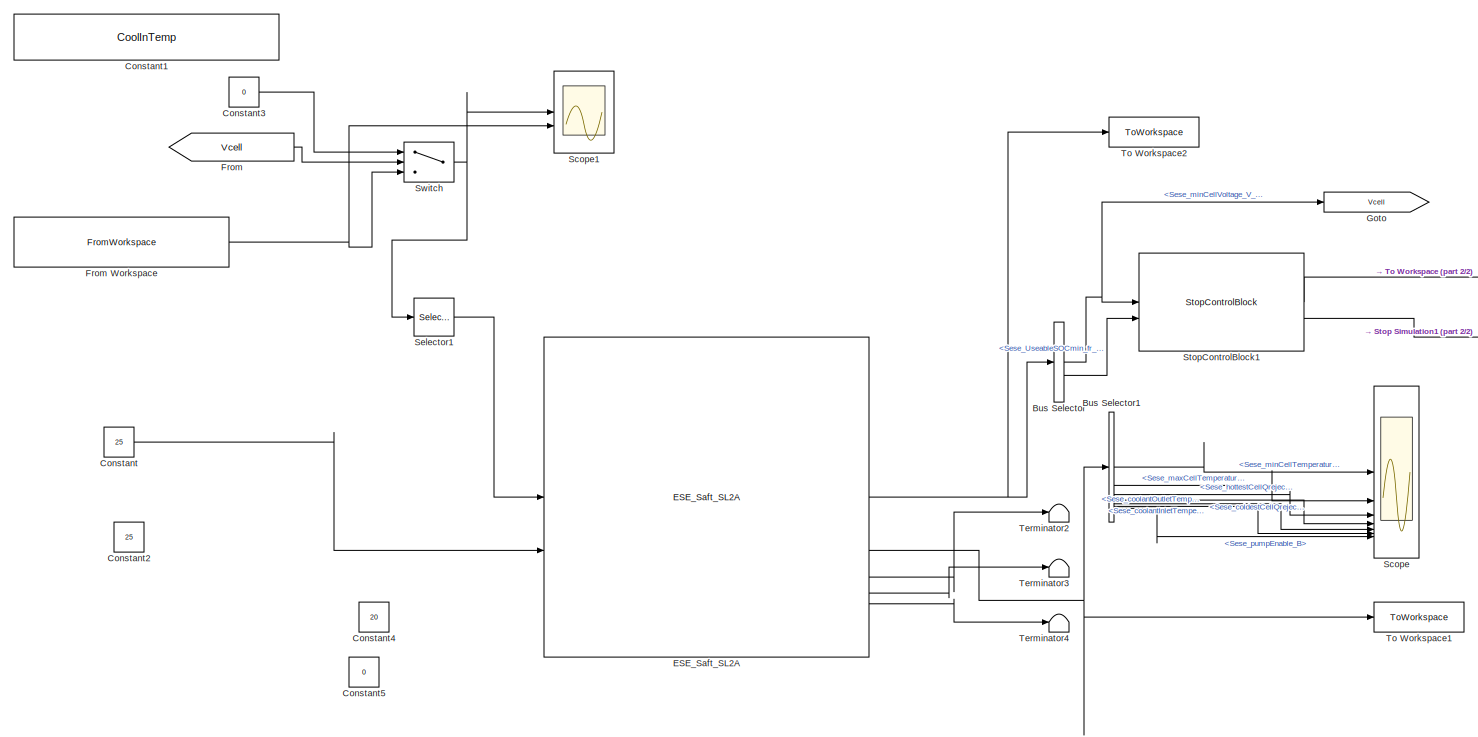
[diagram: root canvas - part 1/2, most of the canvas]
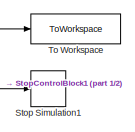
[diagram: root canvas - part 2/2, middle right region]
MODEL slx_b8d86dfba3ff
KIND model
CONFIG AbsTol = auto
CONFIG EnableMultiTasking = off
CONFIG FixedStep = dTime
CONFIG MaxStep = auto
CONFIG MinStep = auto
CONFIG RelTol = 1e-3
CONFIG SampleTimeConstraint = Unconstrained
CONFIG SolverName = FixedStepAuto
CONFIG StartTime = 0.0
CONFIG StopTime = TimeEnd
BLOCK [BusSelector] Bus Selector
  OutputSignals = Sese_minCellVoltage_V_fd,Sese_UseableSOCmin_fr_fd
BLOCK [BusSelector] Bus Selector1
  OutputSignals = Sese_minCellTemperature_degC_fd,Sese_maxCellTemperature_degC_fd,Sese_hottestCellQreject_W_fd,Sese_coldestCellQreject_W_fd,Sese_coolantInletTemperature_degC_fd,Sese_coolantOutletTemperature_degC_fd,Sese_pumpEnable_B
BLOCK [Constant] Constant
  Value = 25
BLOCK [Constant] Constant1
  Commented = on
  Value = CoolInTemp
BLOCK [Constant] Constant2
  Value = 25
BLOCK [Constant] Constant3
  Value = 0
BLOCK [Constant] Constant4
  Value = 20
BLOCK [Constant] Constant5
  Value = 0
BLOCK [Reference] ESE_Saft_SL2A  REF=ESE_Saft_SL2A/ESE_Saft_SL2A
  SourceBlock = ESE_Saft_SL2A/ESE_Saft_SL2A
BLOCK [From] From
  GotoTag = Vcell
BLOCK [FromWorkspace] From Workspace
  OutputAfterFinalValue = Holding final value
  SampleTime = -1
  VariableName = PowerInput
BLOCK [Goto] Goto
  GotoTag = Vcell
BLOCK [Scope] Scope
  Floating = off
  NumInputPorts = 7
  ScopeSpecificationString = Simulink.scopes.TimeScopeBlockCfg('CurrentConfiguration', extmgr.ConfigurationSet(extmgr.Configuration('Core','General UI',true),extmgr.Configuration('Core','Source UI',true),extmgr.Configuration('Sources','WiredSimulink',true),extmgr.Configuration('Visuals','Time Domain',true,'SerializedDisplays',{struct('MinYLimReal','-10.3154','MaxYLimReal','92.83858','YLabelReal','','MinYLimMag','0.00000','Max...<+1780ch>
BLOCK [Scope] Scope1
  Floating = off
  NumInputPorts = 2
  ScopeSpecificationString = Simulink.scopes.TimeScopeBlockCfg('CurrentConfiguration', extmgr.ConfigurationSet(extmgr.Configuration('Core','General UI',true),extmgr.Configuration('Core','Source UI',true),extmgr.Configuration('Sources','WiredSimulink',true,'DataLoggingVariableName','ScopeData1','DataLoggingSaveFormat','Array','DataLoggingLimitDataPoints',true,'DataLoggingDecimation','1'),extmgr.Configuration('Visuals','Time Do...<+1667ch>
BLOCK [Selector] Selector1
  IndexOptions = Index vector (dialog)
  Indices = 1
  InputPortWidth = 1
  OutputSizes = 1
BLOCK [Stop] Stop Simulation1
BLOCK [Reference] StopControlBlock1  REF=BatteryLibrary_lib_YL/StopControlBlock
  SourceBlock = BatteryLibrary_lib_YL/StopControlBlock
  SourceType = SubSystem
BLOCK [Switch] Switch
  Criteria = u2 > Threshold
  InputSameDT = off
  SaturateOnIntegerOverflow = off
  Threshold = 4.2
BLOCK [Terminator] Terminator2
BLOCK [Terminator] Terminator3
BLOCK [Terminator] Terminator4
BLOCK [ToWorkspace] To Workspace
  FixptAsFi = on
  MaxDataPoints = inf
  SampleTime = -1
  SaveFormat = Timeseries
  VariableName = StopSignals_CellHot
BLOCK [ToWorkspace] To Workspace1
  FixptAsFi = on
  MaxDataPoints = inf
  SampleTime = -1
  SaveFormat = Timeseries
  VariableName = Thermal
BLOCK [ToWorkspace] To Workspace2
  FixptAsFi = on
  MaxDataPoints = inf
  SampleTime = -1
  SaveFormat = Timeseries
  VariableName = Electrical
LINE Bus Selector1:1 -> Scope:1
LINE Bus Selector1:2 -> Scope:2
LINE Bus Selector1:3 -> Scope:3
LINE Bus Selector1:4 -> Scope:4
LINE Bus Selector1:5 -> Scope:5
LINE Bus Selector1:6 -> Scope:6
LINE Bus Selector1:7 -> Scope:7
NET Bus Selector:1 -> Goto:1, StopControlBlock1:1
LINE Bus Selector:2 -> StopControlBlock1:2
LINE Constant3:1 -> Switch:1
LINE Constant:1 -> ESE_Saft_SL2A:2
NET ESE_Saft_SL2A:1 -> Bus Selector:1, To Workspace2:1
NET ESE_Saft_SL2A:2 -> Bus Selector1:1, To Workspace1:1
LINE ESE_Saft_SL2A:3 -> Terminator2:1
LINE ESE_Saft_SL2A:4 -> Terminator3:1
LINE ESE_Saft_SL2A:5 -> Terminator4:1
NET From Workspace:1 -> Scope1:2, Switch:3
LINE From:1 -> Switch:2
LINE Selector1:1 -> ESE_Saft_SL2A:1
LINE StopControlBlock1:1 -> To Workspace:1
LINE StopControlBlock1:2 -> Stop Simulation1:1
NET Switch:1 -> Scope1:1, Selector1:1
note: NET lines group one-source signal fan-out (src -> all destinations, sorted); 1:1 wires keep LINE
